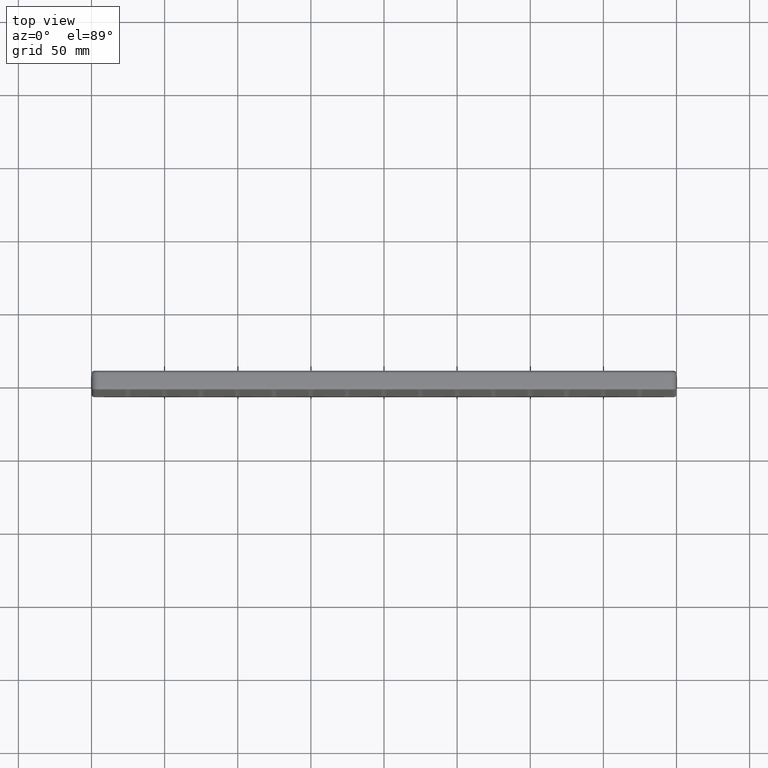
[diagram: clean part render]
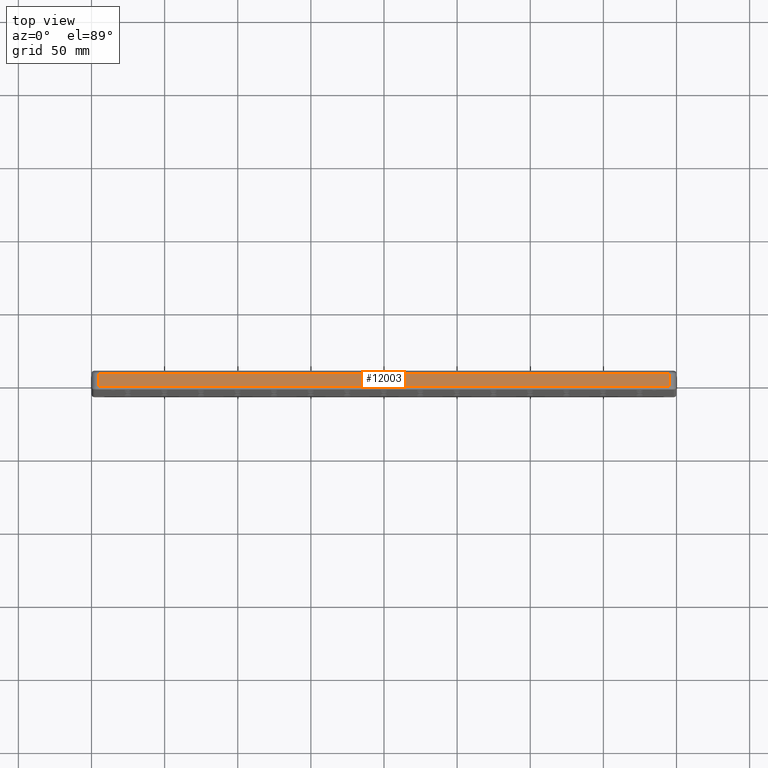
[diagram: same view with one face highlighted and labeled with its STEP entity id]
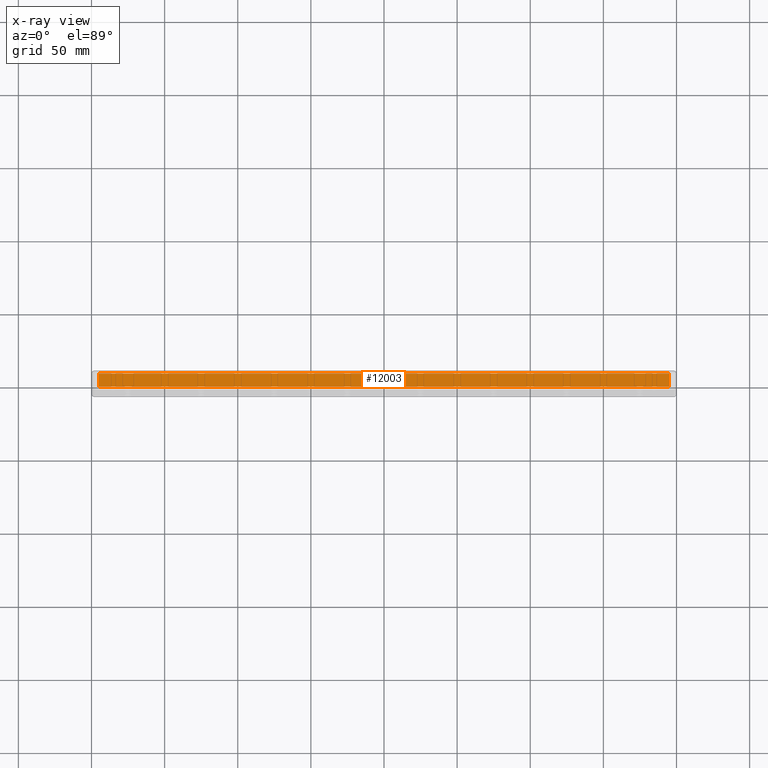
[diagram: x-ray of the same camera — body ghosted, the highlighted face saturated]
A machine part, top view. The second image highlights one B-rep face of the part: STEP entity #12003.
The next image is the same camera in x-ray: the body ghosted, the highlighted face saturated — about 0% of this face is hidden behind the body in this view.
In plain terms, the highlighted planar face has unit normal (0, 0, -1).
Its self-contained STEP definition (entity closure, byte-faithful):
#788 = CARTESIAN_POINT ( 'NONE',  ( -200.0000000000000000, 4.500000000000000000, 150.0000000000000000 ) ) ;
#906 = DIRECTION ( 'NONE',  ( -1.000000000000000000, 0.0000000000000000000, -0.0000000000000000000 ) ) ;
#1015 = DIRECTION ( 'NONE',  ( -0.0000000000000000000, 1.000000000000000000, -0.0000000000000000000 ) ) ;
#1109 = VERTEX_POINT ( 'NONE', #6030 ) ;
#2051 = ORIENTED_EDGE ( 'NONE', *, *, #2830, .T. ) ;
#2687 = EDGE_CURVE ( 'NONE', #12476, #13843, #9216, .T. ) ;
#2830 = EDGE_CURVE ( 'NONE', #13843, #1109, #10718, .T. ) ;
#2881 = ORIENTED_EDGE ( 'NONE', *, *, #2687, .T. ) ;
#3017 = VECTOR ( 'NONE', #8300, 1000.000000000000000 ) ;
#3163 = CARTESIAN_POINT ( 'NONE',  ( 195.0000000000000000, 6.500000000000000000, 150.0000000000000000 ) ) ;
#3995 = CARTESIAN_POINT ( 'NONE',  ( -195.0000000000000000, 4.500000000000000000, 150.0000000000000000 ) ) ;
#4106 = VECTOR ( 'NONE', #1015, 1000.000000000000000 ) ;
#4133 = CARTESIAN_POINT ( 'NONE',  ( -195.0000000000000000, 6.500000000000000000, 150.0000000000000000 ) ) ;
#4769 = FACE_OUTER_BOUND ( 'NONE', #7890, .T. ) ;
#4948 = DIRECTION ( 'NONE',  ( -1.000000000000000000, -0.0000000000000000000, -0.0000000000000000000 ) ) ;
#5633 = LINE ( 'NONE', #3163, #4106 ) ;
#5982 = CARTESIAN_POINT ( 'NONE',  ( -195.0000000000000000, -4.500000000000000000, 150.0000000000000000 ) ) ;
#6030 = CARTESIAN_POINT ( 'NONE',  ( 195.0000000000000000, -4.500000000000000000, 150.0000000000000000 ) ) ;
#7890 = EDGE_LOOP ( 'NONE', ( #2881, #2051, #9483, #12831 ) ) ;
#8024 = DIRECTION ( 'NONE',  ( 1.000000000000000000, 0.0000000000000000000, 0.0000000000000000000 ) ) ;
#8300 = DIRECTION ( 'NONE',  ( 0.0000000000000000000, -1.000000000000000000, 0.0000000000000000000 ) ) ;
#9165 = CARTESIAN_POINT ( 'NONE',  ( 195.0000000000000000, -4.500000000000000000, 150.0000000000000000 ) ) ;
#9216 = LINE ( 'NONE', #4133, #3017 ) ;
#9483 = ORIENTED_EDGE ( 'NONE', *, *, #11436, .T. ) ;
#10295 = EDGE_CURVE ( 'NONE', #12203, #12476, #11698, .T. ) ;
#10666 = AXIS2_PLACEMENT_3D ( 'NONE', #12677, #13742, #906 ) ;
#10718 = LINE ( 'NONE', #9165, #11397 ) ;
#11198 = VECTOR ( 'NONE', #4948, 1000.000000000000000 ) ;
#11397 = VECTOR ( 'NONE', #8024, 1000.000000000000000 ) ;
#11436 = EDGE_CURVE ( 'NONE', #1109, #12203, #5633, .T. ) ;
#11544 = PLANE ( 'NONE',  #10666 ) ;
#11698 = LINE ( 'NONE', #788, #11198 ) ;
#11959 = CARTESIAN_POINT ( 'NONE',  ( 195.0000000000000000, 4.500000000000000000, 150.0000000000000000 ) ) ;
#12003 = ADVANCED_FACE ( 'NONE', ( #4769 ), #11544, .F. ) ;
#12203 = VERTEX_POINT ( 'NONE', #11959 ) ;
#12476 = VERTEX_POINT ( 'NONE', #3995 ) ;
#12677 = CARTESIAN_POINT ( 'NONE',  ( -200.0000000000000000, 6.500000000000000000, 150.0000000000000000 ) ) ;
#12831 = ORIENTED_EDGE ( 'NONE', *, *, #10295, .T. ) ;
#13742 = DIRECTION ( 'NONE',  ( 0.0000000000000000000, 0.0000000000000000000, -1.000000000000000000 ) ) ;
#13843 = VERTEX_POINT ( 'NONE', #5982 ) ;